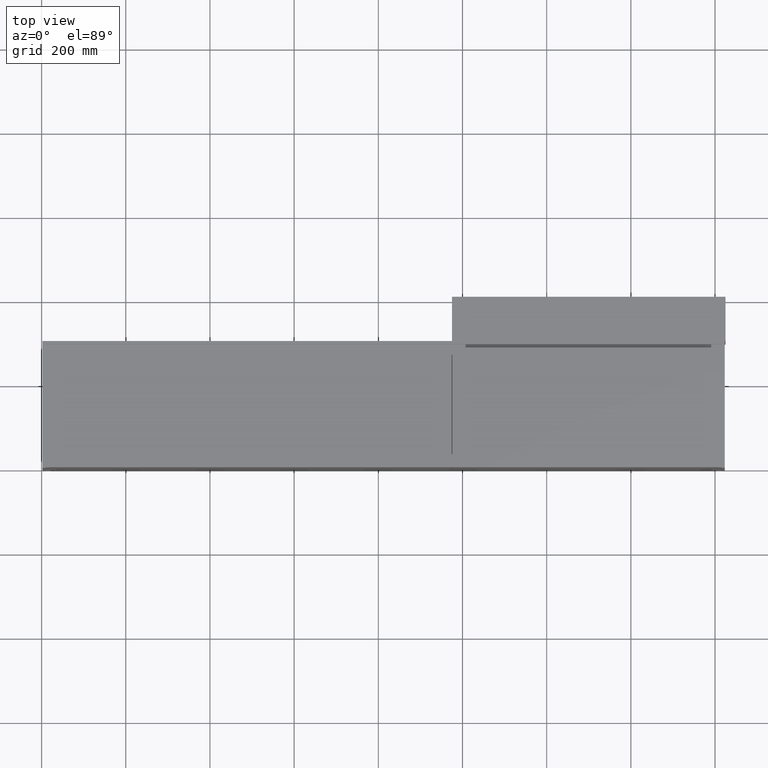
[diagram: clean part render]
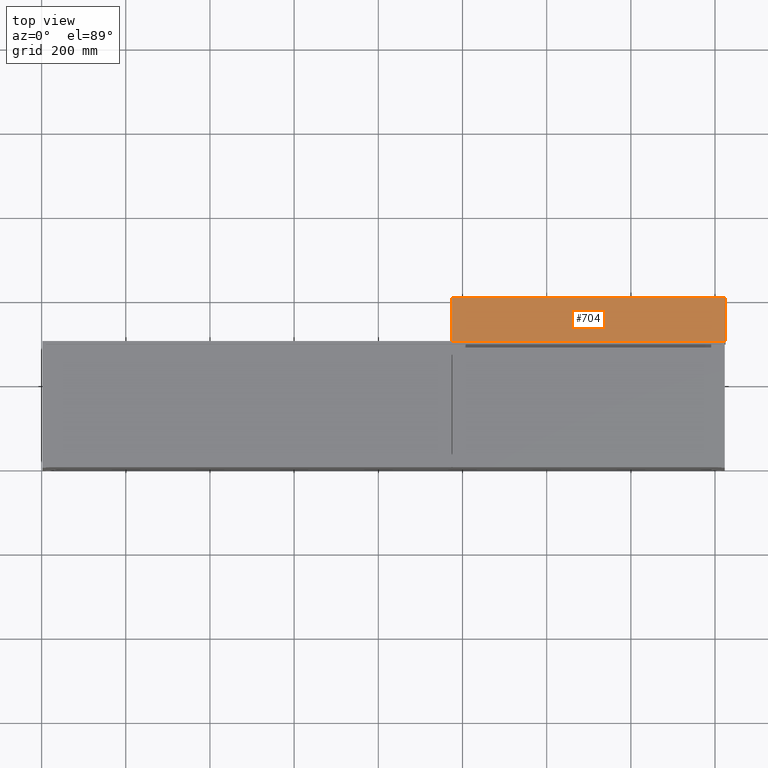
[diagram: same view with one face highlighted and labeled with its STEP entity id]
A machine part, top view. The second image highlights one B-rep face of the part: STEP entity #704.
In plain terms, the highlighted planar face has unit normal (0, 0, -1).
Its self-contained STEP definition (entity closure, byte-faithful):
#226 = CARTESIAN_POINT ( 'NONE',  ( 975.0000000000001137, 300.0000000000000000, 0.0000000000000000000 ) ) ;
#704 = ADVANCED_FACE ( 'NONE', ( #7083 ), #12078, .F. ) ;
#867 = CARTESIAN_POINT ( 'NONE',  ( 1625.000000000000227, 404.9999999999999432, 0.0000000000000000000 ) ) ;
#1299 = EDGE_CURVE ( 'NONE', #2982, #4789, #8518, .T. ) ;
#1674 = LINE ( 'NONE', #6673, #13005 ) ;
#2303 = DIRECTION ( 'NONE',  ( -1.000000000000000000, 0.0000000000000000000, 0.0000000000000000000 ) ) ;
#2815 = LINE ( 'NONE', #7795, #9285 ) ;
#2982 = VERTEX_POINT ( 'NONE', #12106 ) ;
#3216 = EDGE_CURVE ( 'NONE', #14583, #4789, #15577, .T. ) ;
#3834 = CARTESIAN_POINT ( 'NONE',  ( 1625.000000000000227, 403.9999999999999432, 0.0000000000000000000 ) ) ;
#4357 = CARTESIAN_POINT ( 'NONE',  ( 975.0000000000001137, 404.9999999999999432, 0.0000000000000000000 ) ) ;
#4772 = ORIENTED_EDGE ( 'NONE', *, *, #15268, .F. ) ;
#4789 = VERTEX_POINT ( 'NONE', #226 ) ;
#5779 = VECTOR ( 'NONE', #2303, 1000.000000000000000 ) ;
#5859 = DIRECTION ( 'NONE',  ( 0.0000000000000000000, 0.0000000000000000000, -1.000000000000000000 ) ) ;
#6673 = CARTESIAN_POINT ( 'NONE',  ( 1625.000000000000227, 404.9999999999999432, 0.0000000000000000000 ) ) ;
#7083 = FACE_OUTER_BOUND ( 'NONE', #8440, .T. ) ;
#7795 = CARTESIAN_POINT ( 'NONE',  ( 1625.000000000000227, 403.9999999999999432, 0.0000000000000000000 ) ) ;
#8440 = EDGE_LOOP ( 'NONE', ( #13996, #16122, #4772, #10249 ) ) ;
#8518 = LINE ( 'NONE', #13525, #5779 ) ;
#9285 = VECTOR ( 'NONE', #12787, 1000.000000000000000 ) ;
#9347 = DIRECTION ( 'NONE',  ( 0.0000000000000000000, -1.000000000000000000, -0.0000000000000000000 ) ) ;
#9499 = VERTEX_POINT ( 'NONE', #3834 ) ;
#10249 = ORIENTED_EDGE ( 'NONE', *, *, #11997, .F. ) ;
#10742 = VECTOR ( 'NONE', #9347, 1000.000000000000000 ) ;
#10860 = DIRECTION ( 'NONE',  ( 1.000000000000000000, 0.0000000000000000000, 0.0000000000000000000 ) ) ;
#11657 = DIRECTION ( 'NONE',  ( 0.0000000000000000000, -1.000000000000000000, -0.0000000000000000000 ) ) ;
#11997 = EDGE_CURVE ( 'NONE', #14583, #9499, #2815, .T. ) ;
#12078 = PLANE ( 'NONE',  #12585 ) ;
#12106 = CARTESIAN_POINT ( 'NONE',  ( 1625.000000000000227, 300.0000000000000000, 0.0000000000000000000 ) ) ;
#12585 = AXIS2_PLACEMENT_3D ( 'NONE', #867, #5859, #10860 ) ;
#12787 = DIRECTION ( 'NONE',  ( 1.000000000000000000, -0.0000000000000000000, -0.0000000000000000000 ) ) ;
#13005 = VECTOR ( 'NONE', #11657, 1000.000000000000000 ) ;
#13525 = CARTESIAN_POINT ( 'NONE',  ( 1625.000000000000227, 300.0000000000000000, 0.0000000000000000000 ) ) ;
#13755 = CARTESIAN_POINT ( 'NONE',  ( 975.0000000000001137, 403.9999999999999432, 0.0000000000000000000 ) ) ;
#13996 = ORIENTED_EDGE ( 'NONE', *, *, #3216, .T. ) ;
#14583 = VERTEX_POINT ( 'NONE', #13755 ) ;
#15268 = EDGE_CURVE ( 'NONE', #9499, #2982, #1674, .T. ) ;
#15577 = LINE ( 'NONE', #4357, #10742 ) ;
#16122 = ORIENTED_EDGE ( 'NONE', *, *, #1299, .F. ) ;